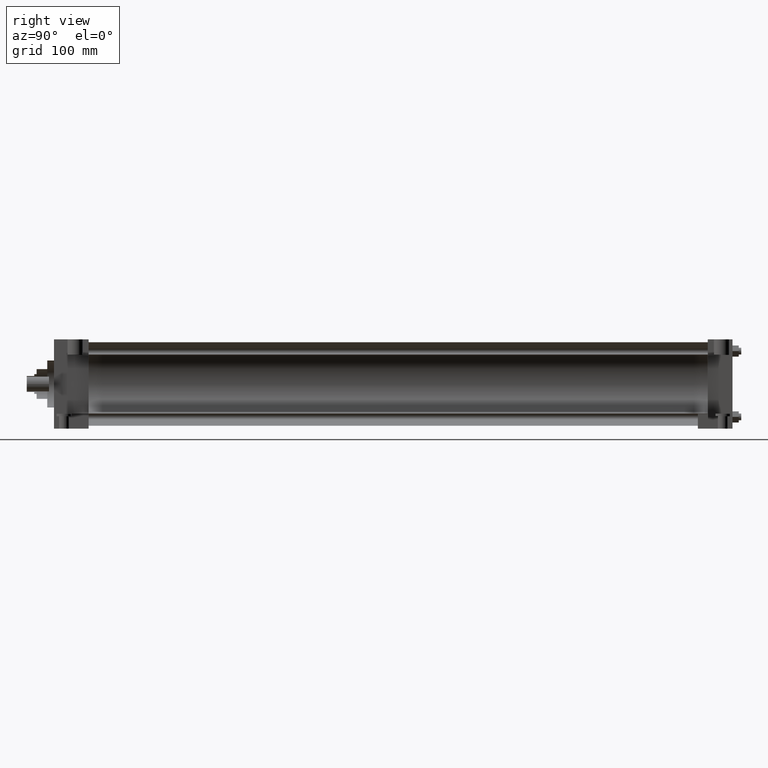
[diagram: clean part render]
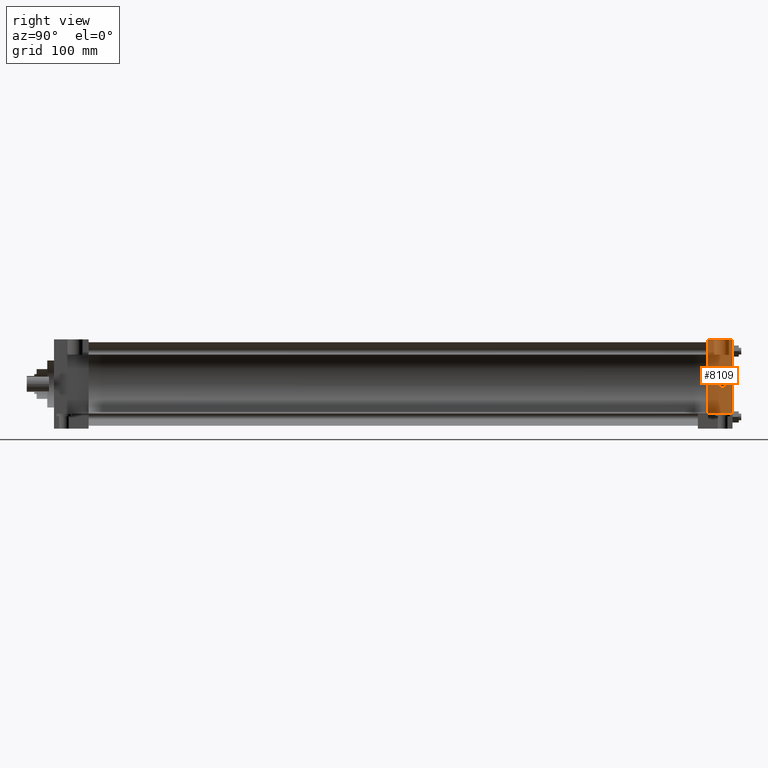
[diagram: same view with one face highlighted and labeled with its STEP entity id]
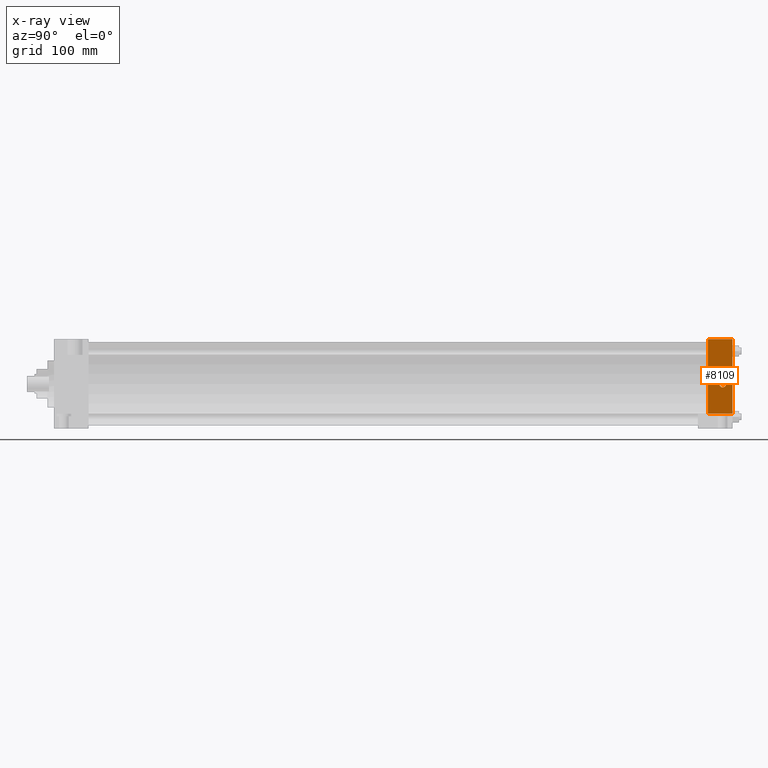
[diagram: x-ray of the same camera — body ghosted, the highlighted face saturated]
A machine part, right view. The second image highlights one B-rep face of the part: STEP entity #8109.
The next image is the same camera in x-ray: the body ghosted, the highlighted face saturated — about 0% of this face is hidden behind the body in this view.
In plain terms, the highlighted planar face has unit normal (1, 0, 0).
Its self-contained STEP definition (entity closure, byte-faithful):
#3213=EDGE_CURVE('',#3219,#3219,#3214,.T.);
#3214=CIRCLE('',#3215,4.365625000E+000);
#3215=AXIS2_PLACEMENT_3D('',#3216,#3217,#3218);
#3216=CARTESIAN_POINT('',(5.715000000E+001,8.921750000E+002,0.000000000E+000));
#3217=DIRECTION('',(-1.0E+000,0.0E+000,0.0E+000));
#3218=DIRECTION('',(0.0E+000,0.0E+000,-1.0E+000));
#3219=VERTEX_POINT('',#3220);
#3220=CARTESIAN_POINT('',(5.715000000E+001,8.921750000E+002,-4.365625000E+000));
#3520=EDGE_CURVE('',#3525,#3526,#3521,.T.);
#3521=LINE('',#3522,#3523);
#3522=CARTESIAN_POINT('',(5.715000000E+001,9.048750000E+002,-3.810000000E+001));
#3523=VECTOR('',#3524,1.0E+000);
#3524=DIRECTION('',(0.0E+000,-1.0E+000,0.0E+000));
#3525=VERTEX_POINT('',#3527);
#3526=VERTEX_POINT('',#3528);
#3527=CARTESIAN_POINT('',(5.715000000E+001,9.048750000E+002,-3.810000000E+001));
#3528=CARTESIAN_POINT('',(5.715000000E+001,8.731250000E+002,-3.810000000E+001));
#3600=LINE('',#3601,#3602);
#3601=CARTESIAN_POINT('',(5.715000000E+001,8.731250000E+002,-5.715000000E+001));
#3602=VECTOR('',#3603,1.0E+000);
#3603=DIRECTION('',(0.0E+000,0.0E+000,1.0E+000));
#3762=VERTEX_POINT('',#3763);
#3763=CARTESIAN_POINT('',(5.715000000E+001,9.048750000E+002,5.715000000E+001));
#3764=EDGE_CURVE('',#3525,#3762,#3765,.T.);
#3765=LINE('',#3766,#3767);
#3766=CARTESIAN_POINT('',(5.715000000E+001,9.048750000E+002,-5.715000000E+001));
#3767=VECTOR('',#3768,1.0E+000);
#3768=DIRECTION('',(0.0E+000,0.0E+000,1.0E+000));
#3795=VERTEX_POINT('',#3796);
#3796=CARTESIAN_POINT('',(5.715000000E+001,8.731250000E+002,5.715000000E+001));
#3797=EDGE_CURVE('',#3762,#3795,#3798,.T.);
#3798=LINE('',#3799,#3800);
#3799=CARTESIAN_POINT('',(5.715000000E+001,9.048750000E+002,5.715000000E+001));
#3800=VECTOR('',#3801,1.0E+000);
#3801=DIRECTION('',(0.0E+000,-1.0E+000,0.0E+000));
#3807=FACE_OUTER_BOUND('',#3809,.T.);
#3808=FACE_BOUND('',#3810,.T.);
#3809=EDGE_LOOP('',(#3811));
#3810=EDGE_LOOP('',(#3812,#3813,#3814,#3815));
#3811=ORIENTED_EDGE('',*,*,#3213,.T.);
#3812=ORIENTED_EDGE('',*,*,#3520,.F.);
#3813=ORIENTED_EDGE('',*,*,#3764,.T.);
#3814=ORIENTED_EDGE('',*,*,#3797,.T.);
#3815=ORIENTED_EDGE('',*,*,#3816,.F.);
#3816=EDGE_CURVE('',#3526,#3795,#3600,.T.);
#3817=PLANE('',#3818);
#3818=AXIS2_PLACEMENT_3D('',#3819,#3820,#3821);
#3819=CARTESIAN_POINT('',(5.715000000E+001,9.048750000E+002,-5.715000000E+001));
#3820=DIRECTION('',(1.0E+000,0.0E+000,0.0E+000));
#3821=DIRECTION('',(0.0E+000,0.0E+000,-1.0E+000));
#8109=ADVANCED_FACE('',(#3807,#3808),#3817,.T.);